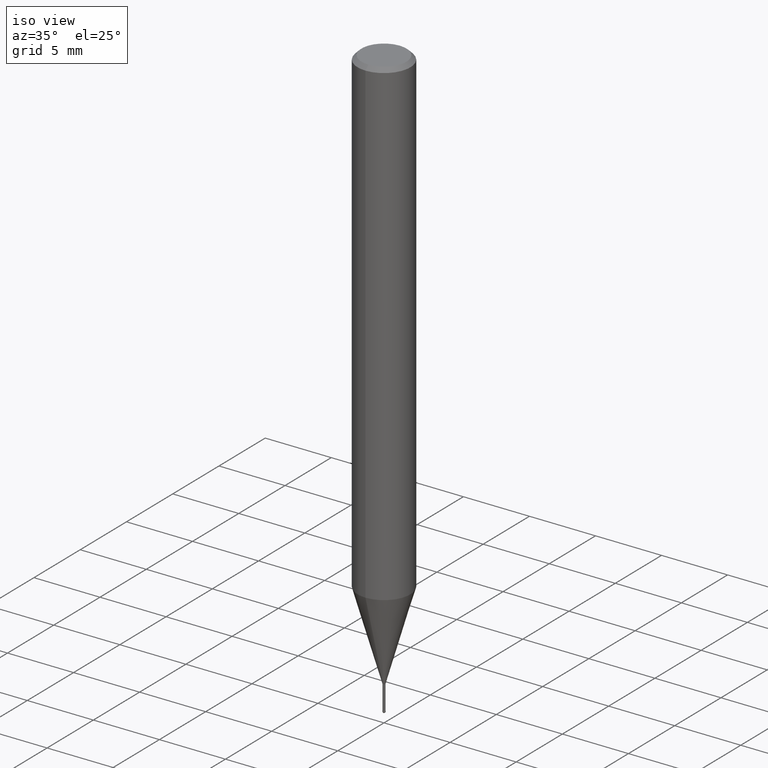
[diagram: clean part render]
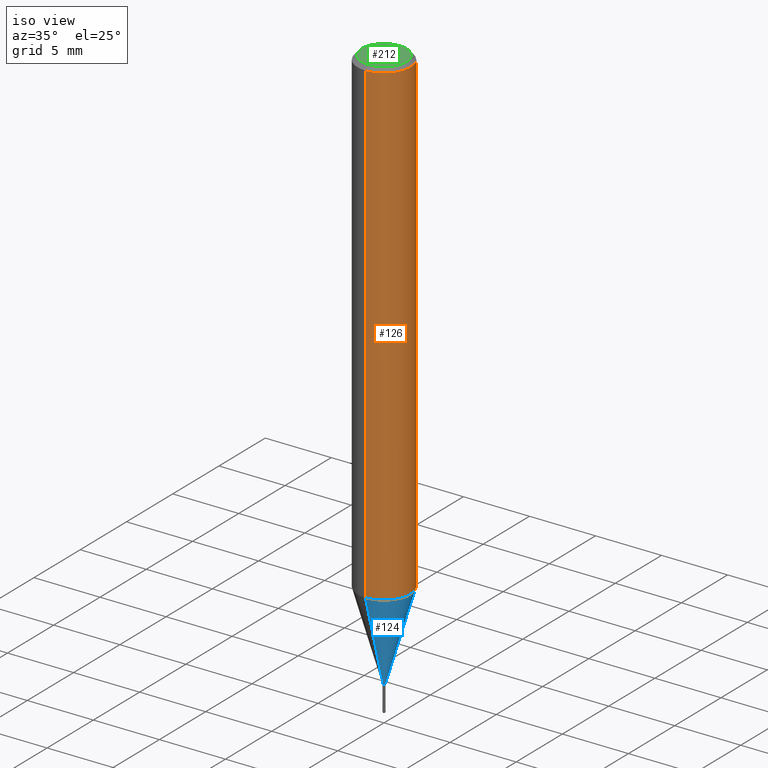
[diagram: same view with three faces highlighted in distinct colors, each labeled with its STEP entity id]
A machine part, iso view with three faces highlighted in distinct colors.
Their STEP definitions:

[orange] entity #126 — the highlighted cylindrical surface (edge-blend (fillet) strip) has radius 2 mm, axis along (-0, -0, 1).
#100=EDGE_CURVE('',#192,#112,#242,.T.);
#112=VERTEX_POINT('',#255);
#126=ADVANCED_FACE('',(#273),#274,.T.);
#136=VERTEX_POINT('',#286);
#156=EDGE_CURVE('',#192,#200,#307,.T.);
#162=EDGE_CURVE('',#112,#136,#314,.T.);
#184=EDGE_CURVE('',#136,#200,#337,.T.);
#192=VERTEX_POINT('',#347);
#200=VERTEX_POINT('',#356);
#242=LINE('',#394,#395);
#255=CARTESIAN_POINT('',(0.0,2.0,-36.356));
#273=FACE_OUTER_BOUND('',#429,.T.);
#274=CYLINDRICAL_SURFACE('',#430,2.0);
#286=CARTESIAN_POINT('',(2.44921270764475E-016,-2.0,-36.356));
#307=CIRCLE('',#473,2.0);
#314=CIRCLE('',#480,2.0);
#337=LINE('',#515,#516);
#347=CARTESIAN_POINT('',(0.0,2.0,-0.299999999999997));
#356=CARTESIAN_POINT('',(2.44921270764475E-016,-2.0,-0.299999999999997));
#394=CARTESIAN_POINT('',(-2.44921270764475E-016,2.0,-18.328));
#395=VECTOR('',#568,1.0);
#429=EDGE_LOOP('',(#612,#613,#614,#615));
#430=AXIS2_PLACEMENT_3D('',#616,#617,#618);
#473=AXIS2_PLACEMENT_3D('',#651,#652,#653);
#480=AXIS2_PLACEMENT_3D('',#661,#662,#663);
#515=CARTESIAN_POINT('',(2.44921270764475E-016,-2.0,-18.328));
#516=VECTOR('',#688,1.0);
#568=DIRECTION('',(0.0,0.0,-1.0));
#612=ORIENTED_EDGE('',*,*,#100,.F.);
#613=ORIENTED_EDGE('',*,*,#156,.T.);
#614=ORIENTED_EDGE('',*,*,#184,.F.);
#615=ORIENTED_EDGE('',*,*,#162,.F.);
#616=CARTESIAN_POINT('',(0.0,0.0,-18.328));
#617=DIRECTION('',(-0.0,-0.0,1.0));
#618=DIRECTION('',(0.0,1.0,0.0));
#651=CARTESIAN_POINT('',(0.0,0.0,-0.299999999999997));
#652=DIRECTION('',(0.0,0.0,-1.0));
#653=DIRECTION('',(0.0,1.0,0.0));
#661=CARTESIAN_POINT('',(0.0,0.0,-36.356));
#662=DIRECTION('',(0.0,0.0,-1.0));
#663=DIRECTION('',(0.0,1.0,0.0));
#688=DIRECTION('',(-0.0,-0.0,1.0));

[blue] entity #124 — the highlighted conical surface has half-angle 15.999 deg.
#94=EDGE_CURVE('',#116,#190,#235,.T.);
#108=EDGE_CURVE('',#190,#210,#251,.T.);
#110=VERTEX_POINT('',#253);
#116=VERTEX_POINT('',#260);
#120=EDGE_CURVE('',#110,#210,#265,.T.);
#124=ADVANCED_FACE('',(#270),#271,.T.);
#154=EDGE_CURVE('',#110,#116,#305,.T.);
#190=VERTEX_POINT('',#345);
#210=VERTEX_POINT('',#367);
#235=CIRCLE('',#386,0.09495);
#251=LINE('',#405,#406);
#253=CARTESIAN_POINT('',(0.0,1.99995,-36.356));
#260=CARTESIAN_POINT('',(0.0,0.09495,-43.0));
#265=CIRCLE('',#421,1.99995);
#270=FACE_OUTER_BOUND('',#426,.T.);
#271=CONICAL_SURFACE('',#427,1.04745,0.279233718115795);
#305=LINE('',#469,#470);
#345=CARTESIAN_POINT('',(1.16276373295435E-017,-0.09495,-43.0));
#367=CARTESIAN_POINT('',(2.44915147732706E-016,-1.99995,-36.356));
#386=AXIS2_PLACEMENT_3D('',#559,#560,#561);
#405=CARTESIAN_POINT('',(1.28271392531125E-016,-1.04745,-39.678));
#406=VECTOR('',#577,1.0);
#421=AXIS2_PLACEMENT_3D('',#592,#593,#594);
#426=EDGE_LOOP('',(#604,#605,#606,#607));
#427=AXIS2_PLACEMENT_3D('',#608,#609,#610);
#469=CARTESIAN_POINT('',(-1.28271392531125E-016,1.04745,-39.678));
#470=VECTOR('',#650,1.0);
#559=CARTESIAN_POINT('',(0.0,0.0,-43.0));
#560=DIRECTION('',(0.0,0.0,-1.0));
#561=DIRECTION('',(0.0,1.0,0.0));
#577=DIRECTION('',(3.37524935540219E-017,-0.275619128127744,0.961266922457078));
#592=CARTESIAN_POINT('',(0.0,0.0,-36.356));
#593=DIRECTION('',(0.0,0.0,-1.0));
#594=DIRECTION('',(0.0,1.0,0.0));
#604=ORIENTED_EDGE('',*,*,#154,.F.);
#605=ORIENTED_EDGE('',*,*,#120,.T.);
#606=ORIENTED_EDGE('',*,*,#108,.F.);
#607=ORIENTED_EDGE('',*,*,#94,.F.);
#608=CARTESIAN_POINT('',(0.0,0.0,-39.678));
#609=DIRECTION('',(-0.0,-0.0,1.0));
#610=DIRECTION('',(0.0,1.0,0.0));
#650=DIRECTION('',(3.37524935540219E-017,-0.275619128127744,-0.961266922457078));

[green] entity #212 — the highlighted planar face has unit normal (-0, 0, 1).
#98=VERTEX_POINT('',#240);
#128=VERTEX_POINT('',#276);
#130=EDGE_CURVE('',#98,#128,#278,.T.);
#138=EDGE_CURVE('',#128,#98,#288,.T.);
#212=ADVANCED_FACE('',(#369),#370,.T.);
#240=CARTESIAN_POINT('',(0.0,1.7,0.0));
#276=CARTESIAN_POINT('',(2.08183080149804E-016,-1.7,0.0));
#278=CIRCLE('',#435,1.7);
#288=CIRCLE('',#446,1.7);
#369=FACE_OUTER_BOUND('',#553,.T.);
#370=PLANE('',#554);
#435=AXIS2_PLACEMENT_3D('',#619,#620,#621);
#446=AXIS2_PLACEMENT_3D('',#630,#631,#632);
#553=EDGE_LOOP('',(#732,#733));
#554=AXIS2_PLACEMENT_3D('',#734,#735,#736);
#619=CARTESIAN_POINT('',(0.0,0.0,0.0));
#620=DIRECTION('',(0.0,0.0,-1.0));
#621=DIRECTION('',(0.0,1.0,0.0));
#630=CARTESIAN_POINT('',(0.0,0.0,0.0));
#631=DIRECTION('',(0.0,0.0,-1.0));
#632=DIRECTION('',(0.0,1.0,0.0));
#732=ORIENTED_EDGE('',*,*,#130,.F.);
#733=ORIENTED_EDGE('',*,*,#138,.F.);
#734=CARTESIAN_POINT('',(0.0,0.85,0.0));
#735=DIRECTION('',(-0.0,0.0,1.0));
#736=DIRECTION('',(0.0,-1.0,0.0));